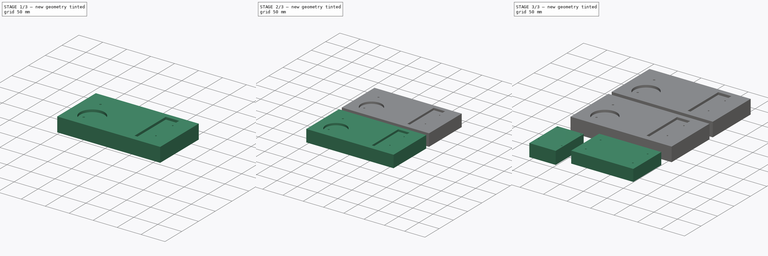
[diagram: build sequence overview — one tinted view per stage of 3, left to right]
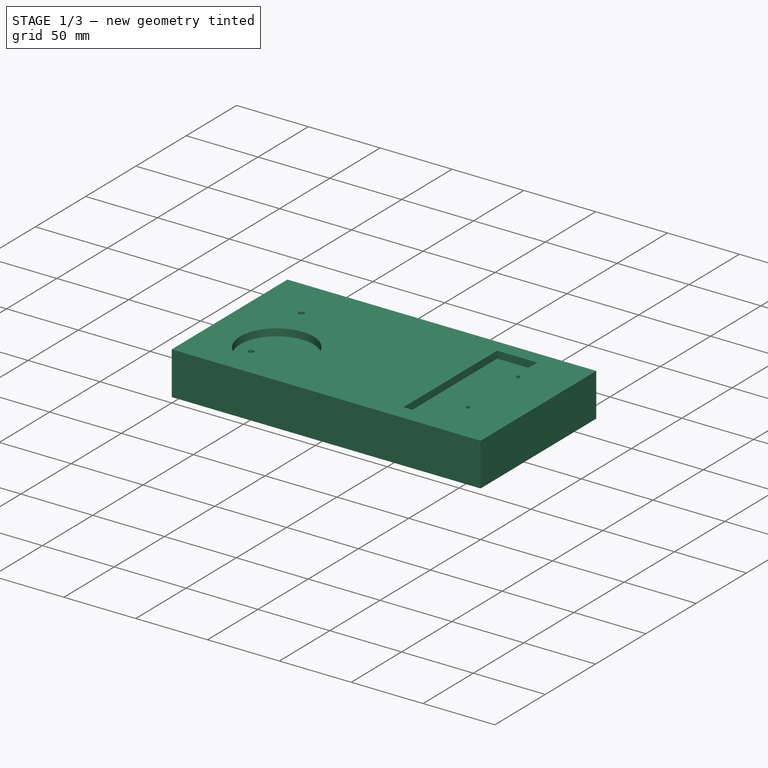
[diagram: stage 1 of 3 — iso view after this stage's code; geometry added in this stage tinted green]
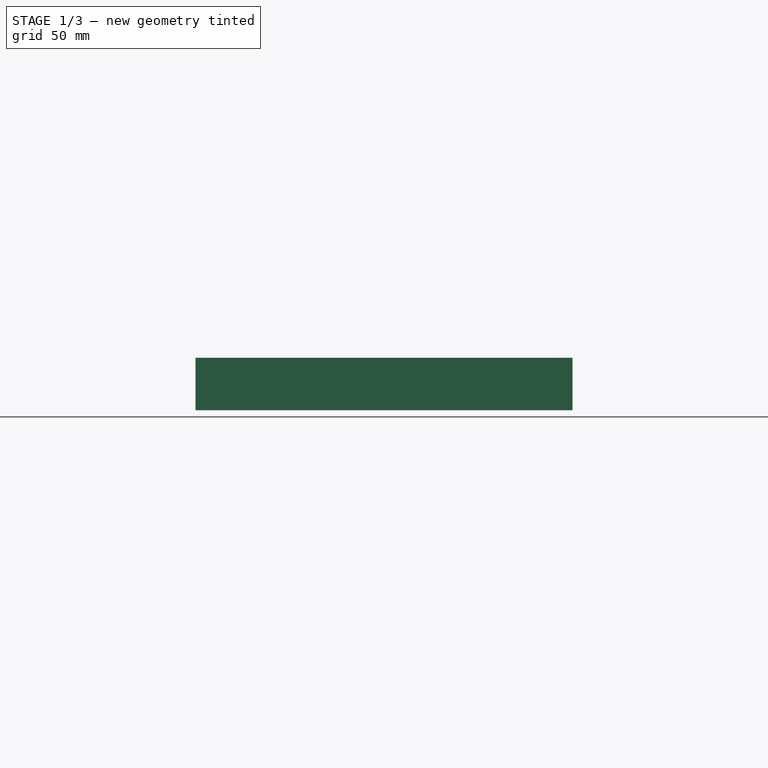
[diagram: stage 1 of 3 — front view after this stage's code; geometry added in this stage tinted green]
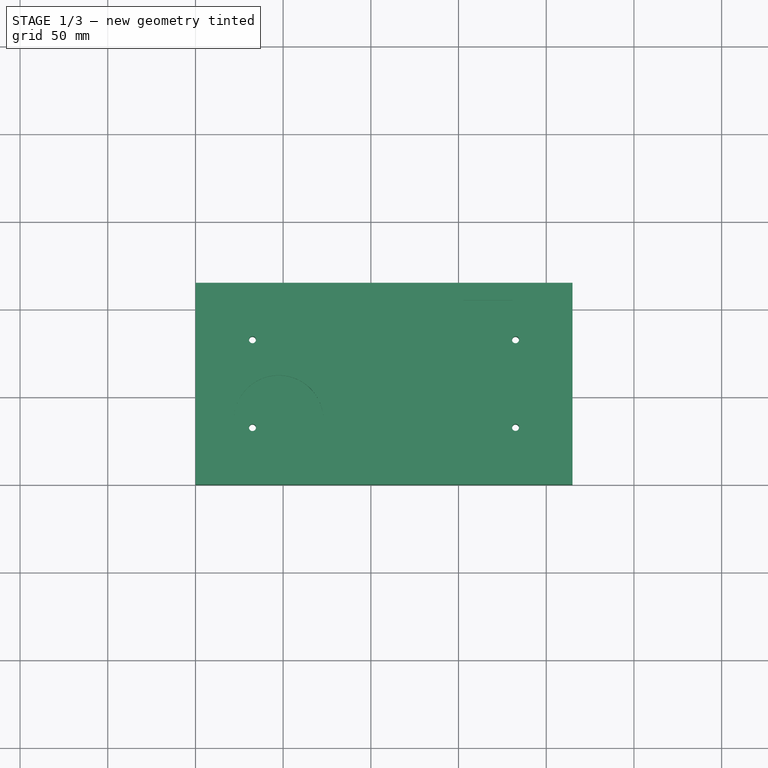
[diagram: stage 1 of 3 — top view after this stage's code; geometry added in this stage tinted green]
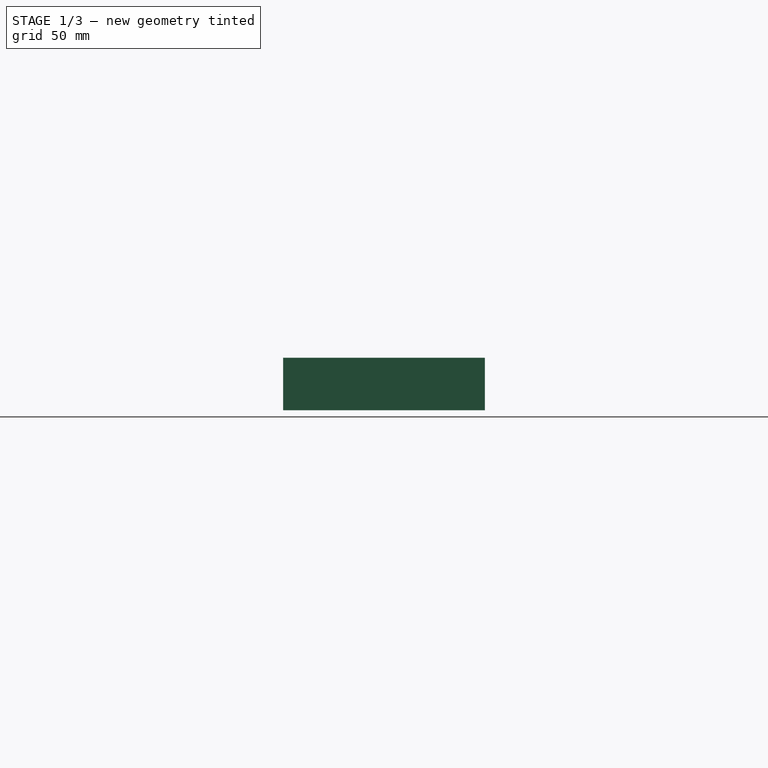
[diagram: stage 1 of 3 — right view after this stage's code; geometry added in this stage tinted green]
FCSTD DOCUMENT  (FreeCAD 0.18R16131 (Git))
Label: Tr33B0x
License: All rights reserved
LicenseURL: http://en.wikipedia.org/wiki/All_rights_reserved
objects: Sketcher::SketchObject×7, PartDesign::Body×5, PartDesign::Pad×4, PartDesign::Pocket×2
note: 24 computed .brp shape members not serialized (recipe doc carries the construction recipe); baked Part::Feature solids carry a one-line shape summary decoded from their .brp

FEATURE [PartDesign::Body] Body002  label="MW LRS-350-5 A"
  Group = -> [Sketch002,Pad002,Sketch003,Pocket]
  Origin = -> Origin002
  Tip = -> Pocket
FEATURE [Sketcher::SketchObject] Sketch004  label="NetzteilGrundriss001"
  MapMode = 5
  Support = -> [XY_Plane003]
  sketch-geometry (12):
    g0: LineSegment StartX=0 StartY=365 StartZ=0 EndX=215 EndY=365 EndZ=0
    g1: LineSegment StartX=215 StartY=365 StartZ=0 EndX=215 EndY=250 EndZ=0
    g2: LineSegment StartX=215 StartY=250 StartZ=0 EndX=0 EndY=250 EndZ=0
    g3: LineSegment StartX=0 StartY=250 StartZ=0 EndX=0 EndY=365 EndZ=0
    g4: Circle CenterX=32.5 CenterY=332.5 CenterZ=0 NormalX=0 NormalY=0 NormalZ=1 AngleXU=0 Radius=2
    g5: LineSegment [constr] StartX=32.5 StartY=332.5 StartZ=0 EndX=182.5 EndY=332.5 EndZ=0
    g6: LineSegment [constr] StartX=182.5 StartY=332.5 StartZ=0 EndX=182.5 EndY=282.5 EndZ=0
    g7: LineSegment [constr] StartX=182.5 StartY=282.5 StartZ=0 EndX=32.5 EndY=282.5 EndZ=0
    g8: LineSegment [constr] StartX=32.5 StartY=282.5 StartZ=0 EndX=32.5 EndY=332.5 EndZ=0
    g9: Circle CenterX=182.5 CenterY=332.5 CenterZ=0 NormalX=0 NormalY=0 NormalZ=1 AngleXU=0 Radius=2
    g10: Circle CenterX=182.5 CenterY=282.5 CenterZ=0 NormalX=0 NormalY=0 NormalZ=1 AngleXU=0 Radius=2
    g11: Circle CenterX=32.5 CenterY=282.5 CenterZ=0 NormalX=0 NormalY=0 NormalZ=1 AngleXU=0 Radius=2
  constraints (32):
    c: Coincident(g0,g1)
    c: Coincident(g1,g2)
    c: Coincident(g2,g3)
    c: Coincident(g3,g0)
    c: Horizontal(g0)
    c: Horizontal(g2)
    c: Vertical(g1)
    c: Vertical(g3)
    c: DistanceX(g0,g0) = 215
    c: DistanceY(g2,g0) = 115
    c: Coincident(g5,g4)
    c: Horizontal(g5)
    c: Coincident(g6,g5)
    c: Vertical(g6)
    c: Coincident(g7,g6)
    c: Horizontal(g7)
    c: Coincident(g8,g7)
    c: Coincident(g8,g4)
    c: Vertical(g8)
    c: Coincident(g9,g5)
    c: Coincident(g10,g6)
    c: Coincident(g11,g7)
    c: Equal(g10,g11)
    c: Equal(g10,g9)
    c: Equal(g10,g4)
    c: Diameter(g10) = 4
    c: DistanceX(g4,g9) = 150
    c: DistanceY(g11,g4) = 50
    c: DistanceY(g4,g0) = 32.5
    c: DistanceX(g10,g1) = 32.5
    c: PointOnObject(g2,g-2)
    c: DistanceY(g-1,g2) = 250
FEATURE [PartDesign::Pad] Pad003  label="NetzteilKoerper001"
  Length = 30
  Length2 = 100
  Profile = -> Sketch004
  Type = 0
FEATURE [Sketcher::SketchObject] Sketch005  label="Luefter003"
  ExternalGeometry = -> [Pad003]
  MapMode = 5
  Placement = pos=(0,0,30) rot=(0,0,1;0rad)
  Support = -> [Pad003]
  sketch-geometry (6):
    g0: GeomPoint X=0 Y=250 Z=0
    g1: Circle CenterX=47.45 CenterY=286.7 CenterZ=0 NormalX=0 NormalY=0 NormalZ=1 AngleXU=0 Radius=25.5
    g2: LineSegment StartX=153 StartY=355 StartZ=0 EndX=181 EndY=355 EndZ=0
    g3: LineSegment StartX=181 StartY=355 StartZ=0 EndX=181 EndY=262 EndZ=0
    g4: LineSegment StartX=181 StartY=262 StartZ=0 EndX=153 EndY=262 EndZ=0
    g5: LineSegment StartX=153 StartY=262 StartZ=0 EndX=153 EndY=355 EndZ=0
  constraints (17):
    c: PointOnObject(g0,g-2)
    c: DistanceY(g-1,g0) = 250
    c: Diameter(g1) = 51
    c: DistanceY(g0,g1) = 36.7
    c: DistanceX(g0,g1) = 47.45
    c: Coincident(g2,g3)
    c: Coincident(g3,g4)
    c: Coincident(g4,g5)
    c: Coincident(g5,g2)
    c: Horizontal(g2)
    c: Horizontal(g4)
    c: Vertical(g3)
    c: Vertical(g5)
    c: DistanceY(g-4,g3) = 12
    c: DistanceY(g2,g-5) = 10
    c: DistanceX(g3,g-4) = 34
    c: DistanceX(g4,g-4) = 62
FEATURE [Sketcher::SketchObject] Sketch006  label="BodenplatteGrundriss"
  MapMode = 5
  Support = -> [XY_Plane004]
  sketch-geometry (29):
    g0: LineSegment StartX=-5 StartY=0 StartZ=0 EndX=250 EndY=0 EndZ=0
    g1: LineSegment StartX=250 StartY=0 StartZ=0 EndX=250 EndY=380 EndZ=0
    g2: LineSegment StartX=250 StartY=380 StartZ=0 EndX=-5 EndY=380 EndZ=0
    g3: LineSegment StartX=-5 StartY=380 StartZ=0 EndX=-5 EndY=0 EndZ=0
    g4: LineSegment [constr] StartX=-5 StartY=375 StartZ=0 EndX=250 EndY=375 EndZ=0
    g5: Circle [constr] CenterX=22.5 CenterY=375 CenterZ=0 NormalX=0 NormalY=0 NormalZ=1 AngleXU=0 Radius=2
    g6: GeomPoint X=20.5 Y=375 Z=0
    g7: GeomPoint X=24.5 Y=375 Z=0
    g8: Circle [constr] CenterX=22.5 CenterY=370 CenterZ=0 NormalX=0 NormalY=0 NormalZ=1 AngleXU=0 Radius=4.5
    g9: LineSegment [constr] StartX=22.5 StartY=375 StartZ=0 EndX=22.5 EndY=370 EndZ=0
    g10: LineSegment [constr] StartX=18 StartY=370 StartZ=0 EndX=27 EndY=370 EndZ=0
    g11: ArcOfCircle CenterX=22.5 CenterY=375 CenterZ=0 NormalX=0 NormalY=0 NormalZ=1 AngleXU=0 Radius=2 StartAngle=-1.24e-14 EndAngle=3.14159
    g12: GeomPoint X=20.5 Y=374.031 Z=0
    g13: GeomPoint X=24.5 Y=374.031 Z=0
    g14: ArcOfCircle CenterX=22.5 CenterY=370 CenterZ=0 NormalX=0 NormalY=0 NormalZ=1 AngleXU=0 Radius=4.5 StartAngle=2.03135 EndAngle=7.39343
    g15: LineSegment StartX=20.5 StartY=375 StartZ=0 EndX=20.5 EndY=374.031 EndZ=0
    g16: LineSegment StartX=24.5 StartY=375 StartZ=0 EndX=24.5 EndY=374.031 EndZ=0
    g17: Circle [constr] CenterX=222.5 CenterY=375 CenterZ=0 NormalX=0 NormalY=0 NormalZ=1 AngleXU=0 Radius=2
    g18: GeomPoint X=220.5 Y=375 Z=0
    g19: GeomPoint X=224.5 Y=375 Z=0
    g20: Circle [constr] CenterX=222.5 CenterY=370 CenterZ=0 NormalX=0 NormalY=0 NormalZ=1 AngleXU=0 Radius=4.5
    g21: LineSegment [constr] StartX=222.5 StartY=375 StartZ=0 EndX=222.5 EndY=370 EndZ=0
    g22: LineSegment [constr] StartX=218 StartY=370 StartZ=0 EndX=227 EndY=370 EndZ=0
    g23: ArcOfCircle CenterX=222.5 CenterY=375 CenterZ=0 NormalX=0 NormalY=0 NormalZ=1 AngleXU=0 Radius=2 StartAngle=2e-16 EndAngle=3.14159
    g24: GeomPoint X=220.5 Y=374.031 Z=0
    g25: GeomPoint X=224.5 Y=374.031 Z=0
    g26: ArcOfCircle CenterX=222.5 CenterY=370 CenterZ=0 NormalX=0 NormalY=0 NormalZ=1 AngleXU=0 Radius=4.5 StartAngle=2.03135 EndAngle=7.39343
    g27: LineSegment StartX=220.5 StartY=375 StartZ=0 EndX=220.5 EndY=374.031 EndZ=0
    g28: LineSegment StartX=224.5 StartY=375 StartZ=0 EndX=224.5 EndY=374.031 EndZ=0
  constraints (73):
    c: Coincident(g0,g1)
    c: Coincident(g1,g2)
    c: Coincident(g2,g3)
    c: Coincident(g3,g0)
    c: Horizontal(g0)
    c: Horizontal(g2)
    c: Vertical(g1)
    c: Vertical(g3)
    c: DistanceX(g2,g1) = 255
    c: DistanceY(g0,g2) = 380
    c: DistanceX(g0,g-1) = 5
    c: PointOnObject(g0,g-1)
    c: PointOnObject(g4,g3)
    c: PointOnObject(g4,g1)
    c: Horizontal(g4)
    c: DistanceY(g4,g1) = 5
    c: PointOnObject(g5,g4)
    c: Diameter(g5) = 4
    c: PointOnObject(g6,g5)
    c: PointOnObject(g6,g4)
    c: PointOnObject(g7,g4)
    c: Diameter(g8) = 9
    c: Coincident(g9,g5)
    c: Vertical(g9)
    c: Coincident(g8,g9)
    c: PointOnObject(g10,g8)
    c: PointOnObject(g10,g8)
    c: Horizontal(g10)
    c: PointOnObject(g8,g10)
    c: Coincident(g11,g5)
    c: Coincident(g11,g6)
    c: Coincident(g11,g7)
    c: PointOnObject(g12,g8)
    c: Coincident(g14,g8)
    c: Coincident(g14,g12)
    c: Coincident(g14,g13)
    c: Coincident(g15,g6)
    c: Coincident(g15,g12)
    c: Coincident(g16,g7)
    c: Coincident(g16,g13)
    c: Vertical(g16)
    c: DistanceY(g10,g6) = 5
    c: Vertical(g15)
    c: DistanceX(g4,g11) = 27.5
    c: Equal(g5,g17) = 4
    c: PointOnObject(g18,g17)
    c: Equal(g8,g20) = 9
    c: Coincident(g21,g17)
    c: Vertical(g21)
    c: Coincident(g20,g21)
    c: PointOnObject(g22,g20)
    c: PointOnObject(g22,g20)
    c: Horizontal(g22)
    c: PointOnObject(g20,g22)
    c: Coincident(g23,g17)
    c: Coincident(g23,g18)
    c: Coincident(g23,g19)
    c: PointOnObject(g24,g20)
    c: Coincident(g26,g20)
    c: Coincident(g26,g24)
    c: Coincident(g26,g25)
    c: Coincident(g27,g18)
    c: Coincident(g27,g24)
    c: Coincident(g28,g19)
    c: Coincident(g28,g25)
    c: Vertical(g28)
    c: DistanceY(g22,g18) = 5
    c: Vertical(g27)
    c: PointOnObject(g23,g4)
    c: PointOnObject(g18,g4)
    c: PointOnObject(g19,g4)
    c: DistanceX(g23,g1) = 27.5
    c: DistanceX(g11,g23) = 200
FEATURE [PartDesign::Body] Body004  label="Bodenplatte"
  Group = -> [Sketch006]
  Origin = -> Origin004
FEATURE [PartDesign::Pocket] Pocket001  label="Luefter002"
  BaseFeature = -> Pad003
  Length = 5
  Length2 = 100
  Profile = -> Sketch005
  Type = 0
FEATURE [PartDesign::Body] Body003  label="MW LRS-350-5 B"
  Group = -> [Sketch004,Pad003,Sketch005,Pocket001]
  Origin = -> Origin003
  Tip = -> Pocket001
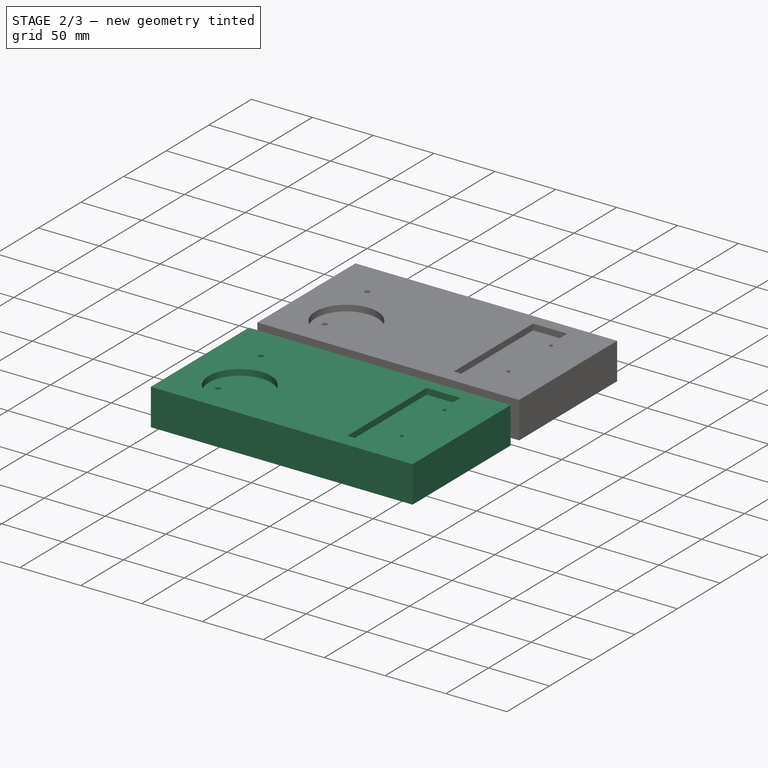
[diagram: stage 2 of 3 — iso view after this stage's code; geometry added in this stage tinted green]
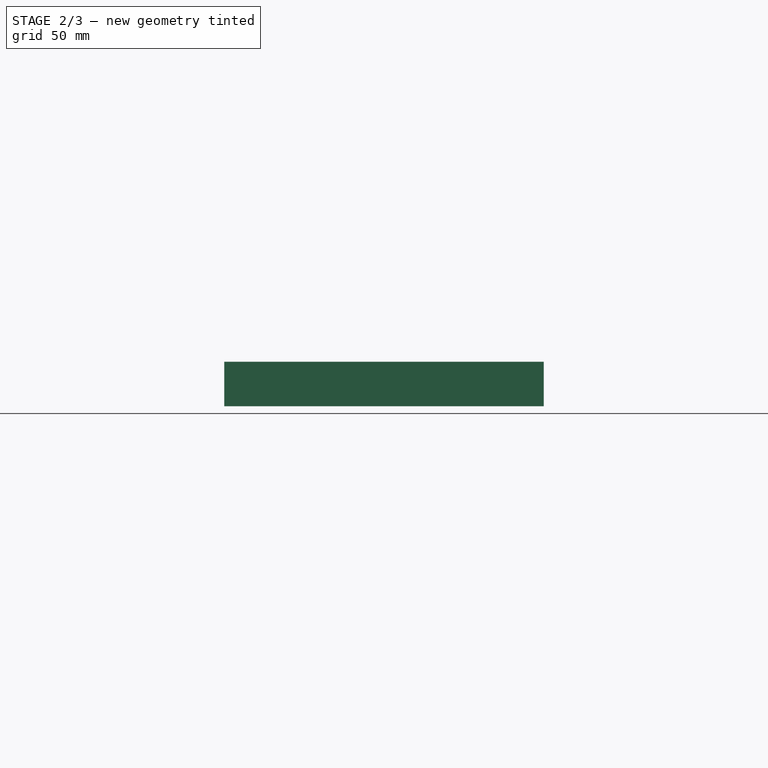
[diagram: stage 2 of 3 — front view after this stage's code; geometry added in this stage tinted green]
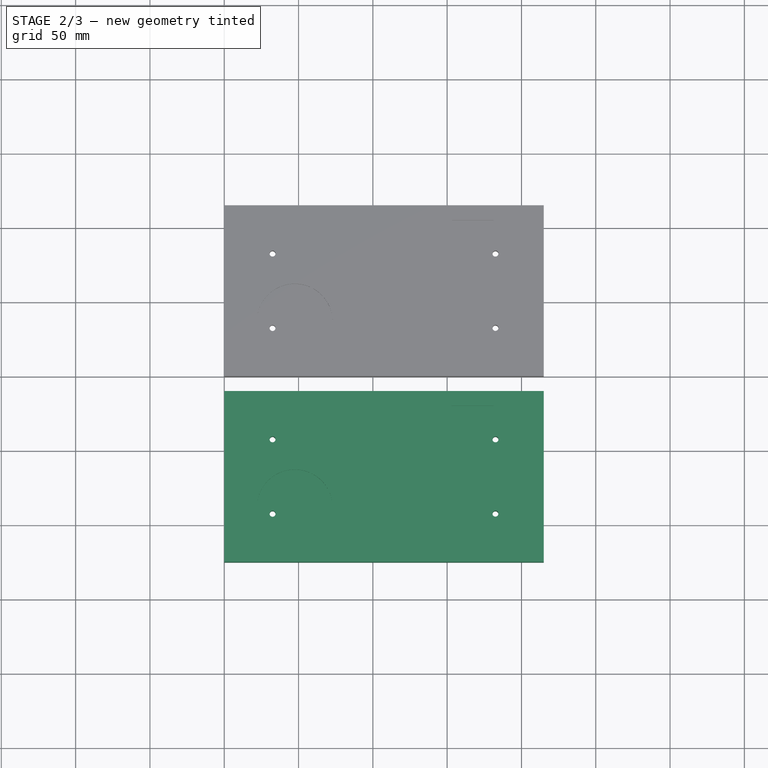
[diagram: stage 2 of 3 — top view after this stage's code; geometry added in this stage tinted green]
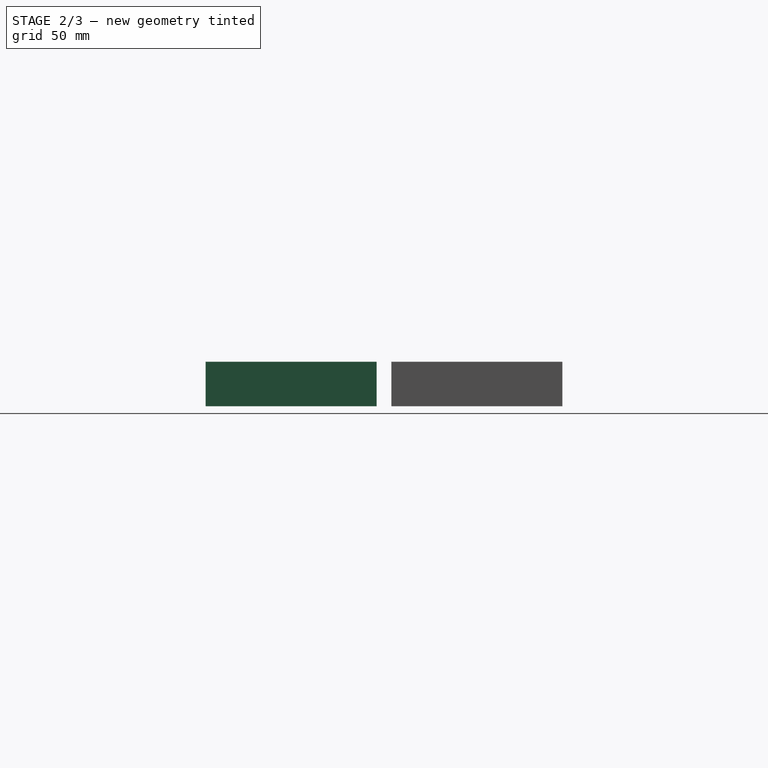
[diagram: stage 2 of 3 — right view after this stage's code; geometry added in this stage tinted green]
FEATURE [PartDesign::Body] Body001  label="DriverBoard"
  Group = -> [Sketch001,Pad001]
  Origin = -> Origin001
  Tip = -> Pad001
FEATURE [Sketcher::SketchObject] Sketch002  label="NetzteilGrundriss"
  MapMode = 5
  Support = -> [XY_Plane002]
  sketch-geometry (12):
    g0: LineSegment StartX=0 StartY=240 StartZ=0 EndX=215 EndY=240 EndZ=0
    g1: LineSegment StartX=215 StartY=240 StartZ=0 EndX=215 EndY=125 EndZ=0
    g2: LineSegment StartX=215 StartY=125 StartZ=0 EndX=0 EndY=125 EndZ=0
    g3: LineSegment StartX=0 StartY=125 StartZ=0 EndX=0 EndY=240 EndZ=0
    g4: Circle CenterX=32.5 CenterY=207.5 CenterZ=0 NormalX=0 NormalY=0 NormalZ=1 AngleXU=0 Radius=2
    g5: LineSegment [constr] StartX=32.5 StartY=207.5 StartZ=0 EndX=182.5 EndY=207.5 EndZ=0
    g6: LineSegment [constr] StartX=182.5 StartY=207.5 StartZ=0 EndX=182.5 EndY=157.5 EndZ=0
    g7: LineSegment [constr] StartX=182.5 StartY=157.5 StartZ=0 EndX=32.5 EndY=157.5 EndZ=0
    g8: LineSegment [constr] StartX=32.5 StartY=157.5 StartZ=0 EndX=32.5 EndY=207.5 EndZ=0
    g9: Circle CenterX=182.5 CenterY=207.5 CenterZ=0 NormalX=0 NormalY=0 NormalZ=1 AngleXU=0 Radius=2
    g10: Circle CenterX=182.5 CenterY=157.5 CenterZ=0 NormalX=0 NormalY=0 NormalZ=1 AngleXU=0 Radius=2
    g11: Circle CenterX=32.5 CenterY=157.5 CenterZ=0 NormalX=0 NormalY=0 NormalZ=1 AngleXU=0 Radius=2
  constraints (32):
    c: Coincident(g0,g1)
    c: Coincident(g1,g2)
    c: Coincident(g2,g3)
    c: Coincident(g3,g0)
    c: Horizontal(g0)
    c: Horizontal(g2)
    c: Vertical(g1)
    c: Vertical(g3)
    c: DistanceX(g0,g0) = 215
    c: DistanceY(g2,g0) = 115
    c: Coincident(g5,g4)
    c: Horizontal(g5)
    c: Coincident(g6,g5)
    c: Vertical(g6)
    c: Coincident(g7,g6)
    c: Horizontal(g7)
    c: Coincident(g8,g7)
    c: Coincident(g8,g4)
    c: Vertical(g8)
    c: Coincident(g9,g5)
    c: Coincident(g10,g6)
    c: Coincident(g11,g7)
    c: Equal(g10,g11)
    c: Equal(g10,g9)
    c: Equal(g10,g4)
    c: Diameter(g10) = 4
    c: DistanceX(g4,g9) = 150
    c: DistanceY(g11,g4) = 50
    c: DistanceY(g4,g0) = 32.5
    c: DistanceX(g10,g1) = 32.5
    c: PointOnObject(g2,g-2)
    c: DistanceY(g-1,g2) = 125
FEATURE [PartDesign::Pad] Pad002  label="NetzteilKoerper"
  Length = 30
  Length2 = 100
  Profile = -> Sketch002
  Type = 0
FEATURE [Sketcher::SketchObject] Sketch003  label="Luefter"
  ExternalGeometry = -> [Pad002]
  MapMode = 5
  Placement = pos=(0,0,30) rot=(0,0,1;0rad)
  Support = -> [Pad002]
  sketch-geometry (6):
    g0: GeomPoint X=0 Y=125 Z=0
    g1: Circle CenterX=47.45 CenterY=161.7 CenterZ=0 NormalX=0 NormalY=0 NormalZ=1 AngleXU=0 Radius=25.5
    g2: LineSegment StartX=153 StartY=230 StartZ=0 EndX=181 EndY=230 EndZ=0
    g3: LineSegment StartX=181 StartY=230 StartZ=0 EndX=181 EndY=137 EndZ=0
    g4: LineSegment StartX=181 StartY=137 StartZ=0 EndX=153 EndY=137 EndZ=0
    g5: LineSegment StartX=153 StartY=137 StartZ=0 EndX=153 EndY=230 EndZ=0
  constraints (17):
    c: PointOnObject(g0,g-2)
    c: DistanceY(g-1,g0) = 125
    c: Diameter(g1) = 51
    c: DistanceY(g0,g1) = 36.7
    c: DistanceX(g0,g1) = 47.45
    c: Coincident(g2,g3)
    c: Coincident(g3,g4)
    c: Coincident(g4,g5)
    c: Coincident(g5,g2)
    c: Horizontal(g2)
    c: Horizontal(g4)
    c: Vertical(g3)
    c: Vertical(g5)
    c: DistanceX(g3,g-5) = 34
    c: DistanceX(g4,g-5) = 62
    c: DistanceY(g-5,g3) = 12
    c: DistanceY(g2,g-4) = 10
FEATURE [PartDesign::Pocket] Pocket  label="Luefter001"
  BaseFeature = -> Pad002
  Length = 5
  Length2 = 100
  Profile = -> Sketch003
  Type = 0
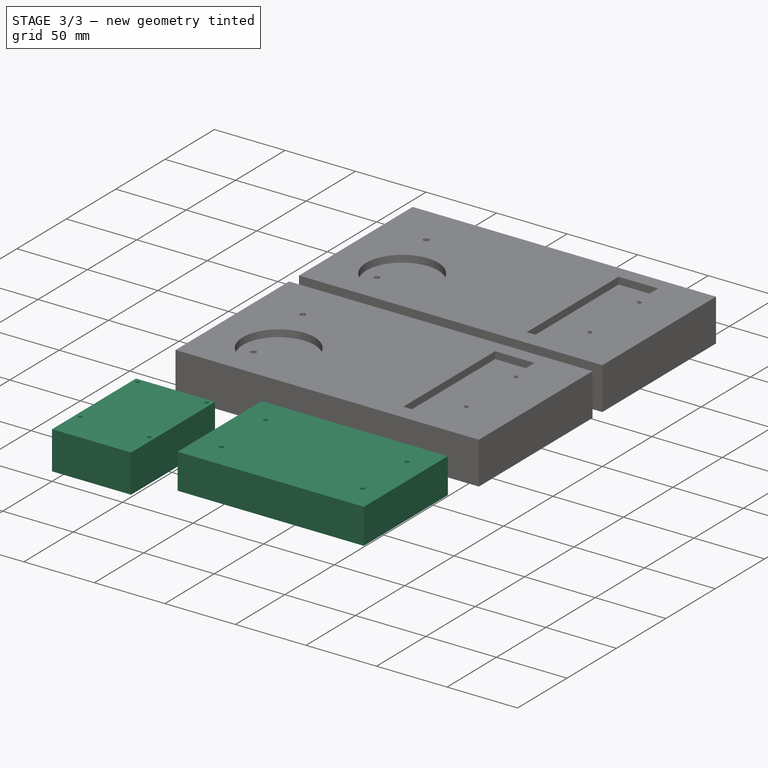
[diagram: stage 3 of 3 — iso view after this stage's code; geometry added in this stage tinted green]
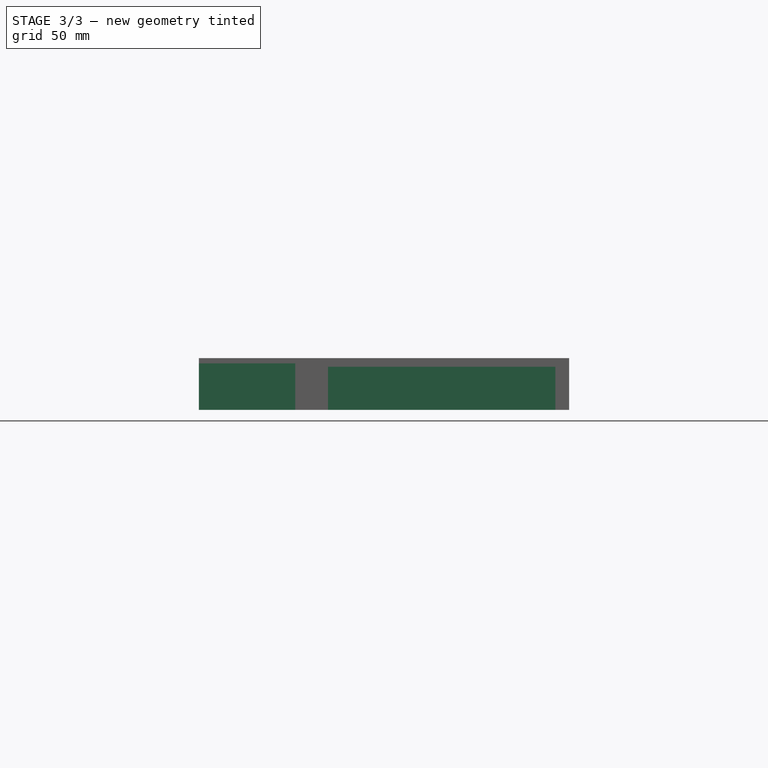
[diagram: stage 3 of 3 — front view after this stage's code; geometry added in this stage tinted green]
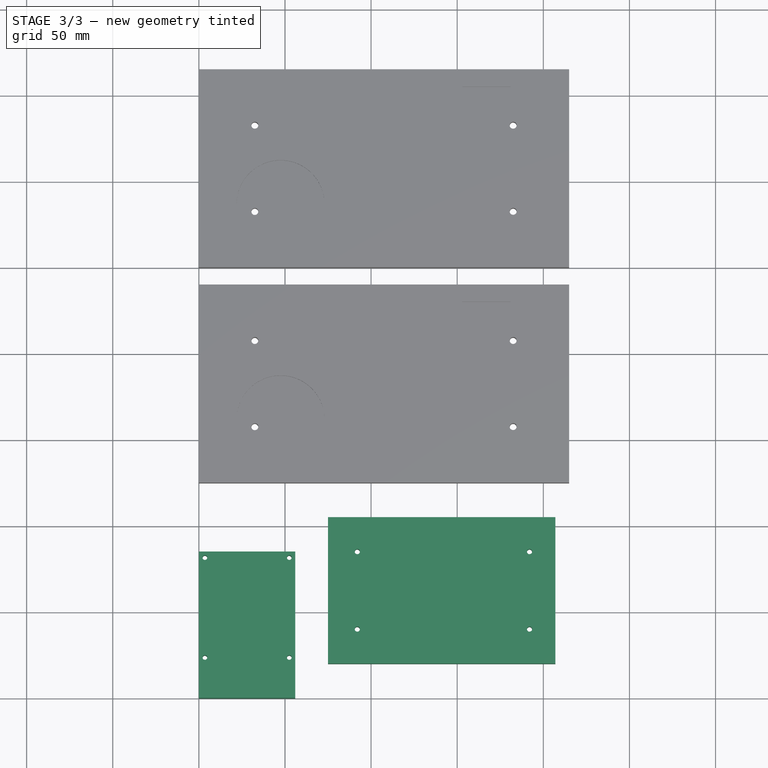
[diagram: stage 3 of 3 — top view after this stage's code; geometry added in this stage tinted green]
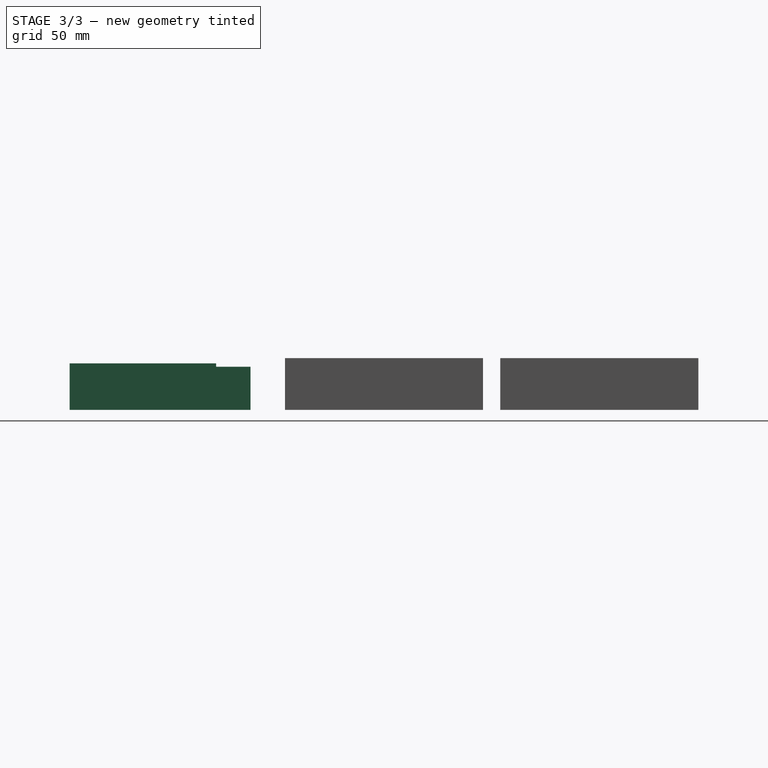
[diagram: stage 3 of 3 — right view after this stage's code; geometry added in this stage tinted green]
FEATURE [Sketcher::SketchObject] Sketch
  MapMode = 5
  Support = -> [XY_Plane]
  sketch-geometry (8):
    g0: LineSegment StartX=0 StartY=85 StartZ=0 EndX=56 EndY=85 EndZ=0
    g1: LineSegment StartX=56 StartY=85 StartZ=0 EndX=56 EndY=0 EndZ=0
    g2: LineSegment StartX=56 StartY=0 StartZ=0 EndX=0 EndY=0 EndZ=0
    g3: LineSegment StartX=0 StartY=0 StartZ=0 EndX=0 EndY=85 EndZ=0
    g4: Circle CenterX=3.5 CenterY=81.5 CenterZ=0 NormalX=0 NormalY=0 NormalZ=1 AngleXU=0 Radius=1.375
    g5: Circle CenterX=52.5 CenterY=81.5 CenterZ=0 NormalX=0 NormalY=0 NormalZ=1 AngleXU=0 Radius=1.375
    g6: Circle CenterX=3.5 CenterY=23.5 CenterZ=0 NormalX=0 NormalY=0 NormalZ=1 AngleXU=0 Radius=1.375
    g7: Circle CenterX=52.5 CenterY=23.5 CenterZ=0 NormalX=0 NormalY=0 NormalZ=1 AngleXU=0 Radius=1.375
  constraints (23):
    c: Coincident(g0,g1)
    c: Coincident(g1,g2)
    c: Coincident(g2,g3)
    c: Coincident(g3,g0)
    c: Horizontal(g0)
    c: Horizontal(g2)
    c: Vertical(g1)
    c: Vertical(g3)
    c: DistanceX(g0,g0) = 56
    c: DistanceY(g1,g0) = 85
    c: Coincident(g2,g-1)
    c: Diameter(g4) = 2.75
    c: Equal(g4,g5)
    c: Equal(g4,g6)
    c: Equal(g4,g7)
    c: DistanceX(g0,g4) = 3.5
    c: DistanceY(g4,g0) = 3.5
    c: DistanceX(g4,g5) = 49
    c: DistanceY(g5,g0) = 3.5
    c: DistanceY(g7,g5) = 58
    c: DistanceY(g6,g4) = 58
    c: DistanceX(g2,g6) = 3.5
    c: DistanceX(g7,g1) = 3.5
FEATURE [PartDesign::Pad] Pad
  Length = 27
  Length2 = 100
  Profile = -> Sketch
  Type = 0
FEATURE [PartDesign::Body] Body  label="Pi3B+"
  Group = -> [Sketch,Pad]
  Origin = -> Origin
  Tip = -> Pad
FEATURE [Sketcher::SketchObject] Sketch001
  MapMode = 5
  Support = -> [XY_Plane001]
  sketch-geometry (12):
    g0: LineSegment StartX=75 StartY=105 StartZ=0 EndX=207 EndY=105 EndZ=0
    g1: LineSegment StartX=207 StartY=105 StartZ=0 EndX=207 EndY=20 EndZ=0
    g2: LineSegment StartX=207 StartY=20 StartZ=0 EndX=75 EndY=20 EndZ=0
    g3: LineSegment StartX=75 StartY=20 StartZ=0 EndX=75 EndY=105 EndZ=0
    g4: Circle CenterX=92 CenterY=85 CenterZ=0 NormalX=0 NormalY=0 NormalZ=1 AngleXU=0 Radius=1.5
    g5: Circle CenterX=192 CenterY=85 CenterZ=0 NormalX=0 NormalY=0 NormalZ=1 AngleXU=0 Radius=1.5
    g6: Circle CenterX=92 CenterY=40 CenterZ=0 NormalX=0 NormalY=0 NormalZ=1 AngleXU=0 Radius=1.5
    g7: Circle CenterX=192 CenterY=40 CenterZ=0 NormalX=0 NormalY=0 NormalZ=1 AngleXU=0 Radius=1.5
    g8: LineSegment [constr] StartX=92 StartY=85 StartZ=0 EndX=92 EndY=40 EndZ=0
    g9: LineSegment [constr] StartX=92 StartY=85 StartZ=0 EndX=192 EndY=85 EndZ=0
    g10: LineSegment [constr] StartX=192 StartY=85 StartZ=0 EndX=192 EndY=40 EndZ=0
    g11: LineSegment [constr] StartX=192 StartY=40 StartZ=0 EndX=92 EndY=40 EndZ=0
  constraints (32):
    c: Coincident(g0,g1)
    c: Coincident(g1,g2)
    c: Coincident(g2,g3)
    c: Coincident(g3,g0)
    c: Horizontal(g0)
    c: Horizontal(g2)
    c: Vertical(g1)
    c: Vertical(g3)
    c: DistanceY(g1,g0) = 85
    c: DistanceX(g2,g1) = 132
    c: DistanceY(g-1,g2) = 20
    c: DistanceX(g-1,g2) = 75
    c: DistanceX(g0,g4) = 17
    c: Coincident(g8,g4)
    c: Coincident(g8,g6)
    c: Vertical(g8)
    c: Coincident(g9,g4)
    c: Coincident(g9,g5)
    c: Horizontal(g9)
    c: Coincident(g10,g7)
    c: Vertical(g10)
    c: Coincident(g11,g7)
    c: Coincident(g11,g6)
    c: Horizontal(g11)
    c: Coincident(g10,g5)
    c: DistanceX(g4,g5) = 100
    c: DistanceY(g7,g5) = 45
    c: Equal(g7,g6)
    c: Equal(g7,g4)
    c: Equal(g7,g5)
    c: Diameter(g7) = 3
    c: DistanceY(g4,g0) = 20
FEATURE [PartDesign::Pad] Pad001
  Length = 25
  Length2 = 100
  Profile = -> Sketch001
  Type = 0
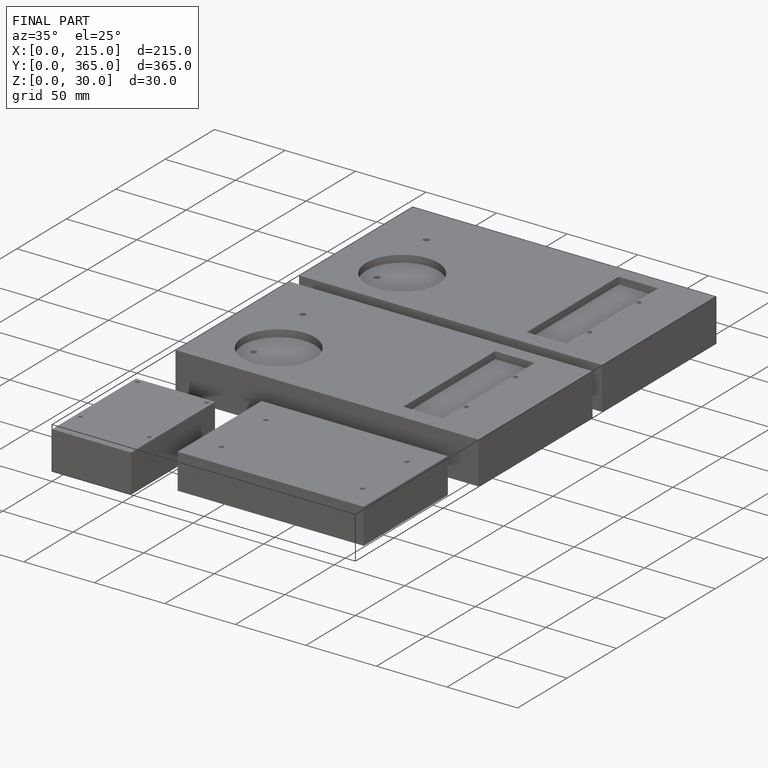
[diagram: finished part — iso view with bounding-box wireframe]
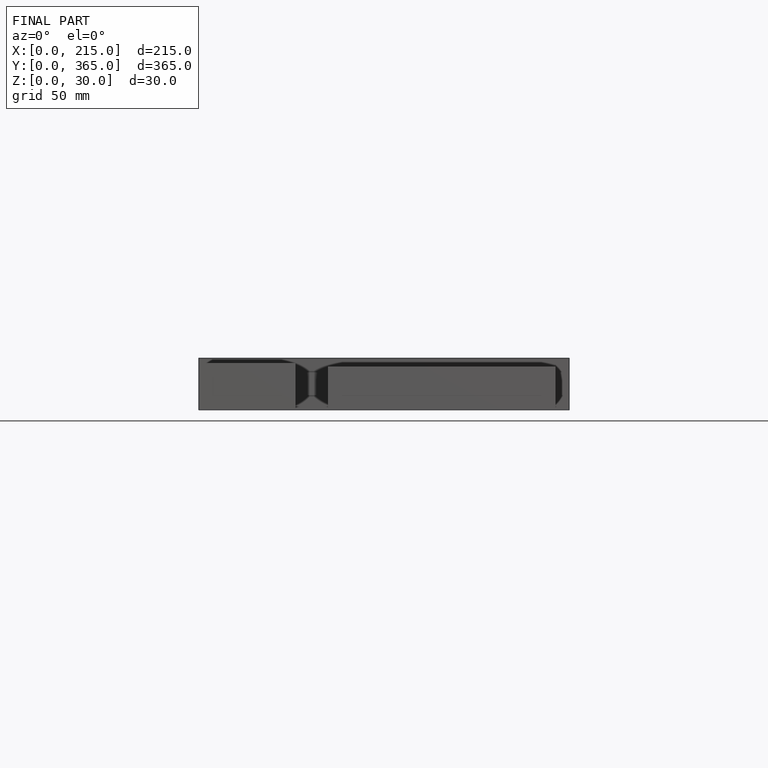
[diagram: finished part — front view with bounding-box wireframe]
